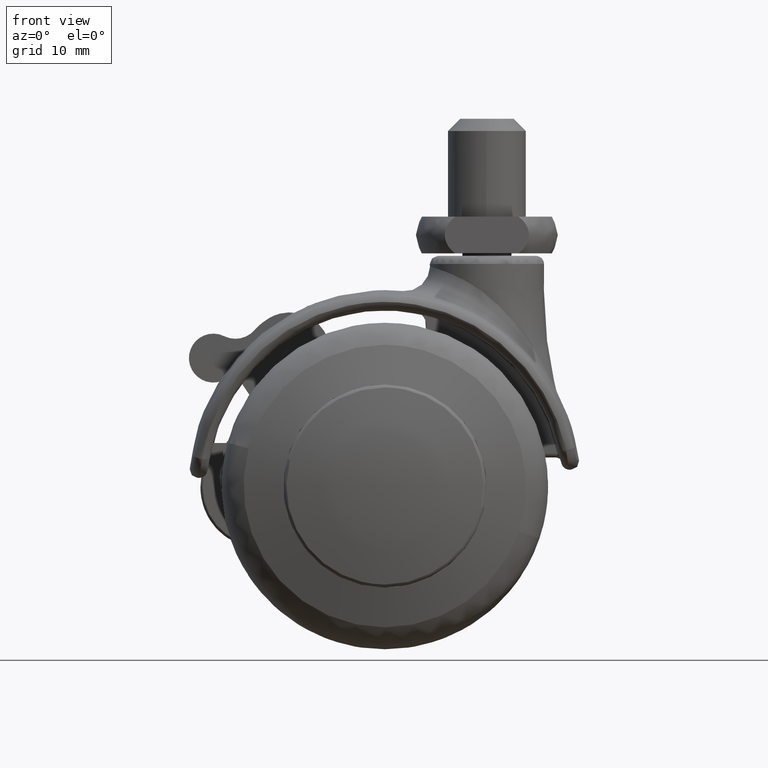
[diagram: clean part render]
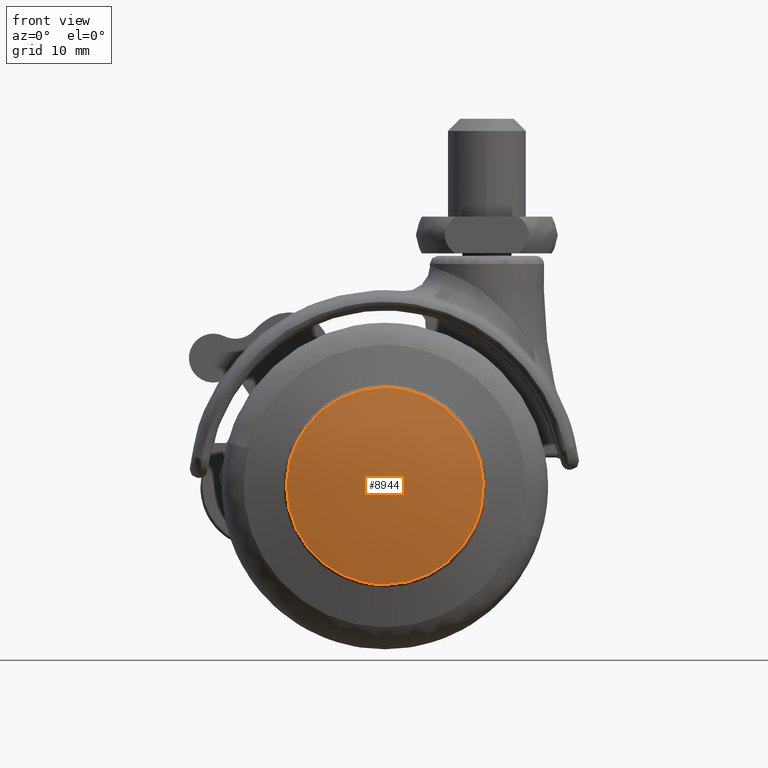
[diagram: same view with one face highlighted and labeled with its STEP entity id]
A machine part, front view. The second image highlights one B-rep face of the part: STEP entity #8944.
In plain terms, the highlighted face is a freeform B-spline surface patch.
Its self-contained STEP definition (entity closure, byte-faithful):
#7233=CARTESIAN_POINT('',(-11.624352625806271,-18.104171105002852,3.227796983644140));
#7234=VERTEX_POINT('',#7233);
#7248=CARTESIAN_POINT('',(0.0,-18.104171123358299,12.064171975249510));
#7249=VERTEX_POINT('',#7248);
#7250=CARTESIAN_POINT('',(0.0,-18.104171123358299,12.064171975249510));
#7251=CARTESIAN_POINT('',(-9.170708417135499,-18.104171123358302,12.064171975249504));
#7252=CARTESIAN_POINT('',(-11.624352625806267,-18.104171105002848,3.227796983644140));
#7260=(BOUNDED_CURVE()B_SPLINE_CURVE(2,(#7250,#7251,#7252),.UNSPECIFIED.,.F.,.U.)B_SPLINE_CURVE_WITH_KNOTS((3,3),(0.0,0.204398610759922),.UNSPECIFIED.)CURVE()GEOMETRIC_REPRESENTATION_ITEM()RATIONAL_B_SPLINE_CURVE((1.0,0.760532131894114,0.912639460288095))REPRESENTATION_ITEM(''));
#7261=EDGE_CURVE('',#7249,#7234,#7260,.T.);
#7263=CARTESIAN_POINT('',(11.789930810766929,-18.104171098746860,-2.557690258343029));
#7264=VERTEX_POINT('',#7263);
#7265=CARTESIAN_POINT('',(11.789930810766936,-18.104171098746868,-2.557690258343029));
#7266=CARTESIAN_POINT('',(12.064171975249497,-18.104171123358299,-1.293547500070638));
#7267=CARTESIAN_POINT('',(12.064171975249501,-18.104171123358299,4.440892E-015));
#7268=CARTESIAN_POINT('',(12.064171975249497,-18.104171123358302,12.064171975249506));
#7269=CARTESIAN_POINT('',(0.0,-18.104171123358299,12.064171975249510));
#7277=(BOUNDED_CURVE()B_SPLINE_CURVE(2,(#7265,#7266,#7267,#7268,#7269),.UNSPECIFIED.,.F.,.U.)B_SPLINE_CURVE_WITH_KNOTS((3,2,3),(0.713703258473060,0.750000000000000,1.0),.UNSPECIFIED.)CURVE()GEOMETRIC_REPRESENTATION_ITEM()RATIONAL_B_SPLINE_CURVE((0.927299386102889,0.957475722166939,1.0,0.707106781186547,1.0))REPRESENTATION_ITEM(''));
#7278=EDGE_CURVE('',#7264,#7249,#7277,.T.);
#7331=CARTESIAN_POINT('',(0.0,-18.104171123358299,-12.064171975249501));
#7332=VERTEX_POINT('',#7331);
#7333=CARTESIAN_POINT('',(0.0,-18.104171123358299,-12.064171975249501));
#7334=CARTESIAN_POINT('',(9.727608532988420,-18.104171123358292,-12.064171975249494));
#7335=CARTESIAN_POINT('',(11.789930810766931,-18.104171098746864,-2.557690258343028));
#7343=(BOUNDED_CURVE()B_SPLINE_CURVE(2,(#7333,#7334,#7335),.UNSPECIFIED.,.F.,.U.)B_SPLINE_CURVE_WITH_KNOTS((3,3),(0.500000000000000,0.713703258473061),.UNSPECIFIED.)CURVE()GEOMETRIC_REPRESENTATION_ITEM()RATIONAL_B_SPLINE_CURVE((1.0,0.749631059019607,0.927299386102891))REPRESENTATION_ITEM(''));
#7344=EDGE_CURVE('',#7332,#7264,#7343,.T.);
#7346=CARTESIAN_POINT('',(-11.624352625806271,-18.104171105002841,3.227796983644140));
#7347=CARTESIAN_POINT('',(-12.064171975249499,-18.104171123358302,1.643863366507249));
#7348=CARTESIAN_POINT('',(-12.064171975249501,-18.104171123358299,4.440892E-015));
#7349=CARTESIAN_POINT('',(-12.064171975249497,-18.104171123358302,-12.064171975249495));
#7350=CARTESIAN_POINT('',(0.0,-18.104171123358299,-12.064171975249501));
#7358=(BOUNDED_CURVE()B_SPLINE_CURVE(2,(#7346,#7347,#7348,#7349,#7350),.UNSPECIFIED.,.F.,.U.)B_SPLINE_CURVE_WITH_KNOTS((3,2,3),(0.204398610759922,0.250000000000000,0.500000000000000),.UNSPECIFIED.)CURVE()GEOMETRIC_REPRESENTATION_ITEM()RATIONAL_B_SPLINE_CURVE((0.912639460288095,0.946574649292434,1.0,0.707106781186547,1.0))REPRESENTATION_ITEM(''));
#7359=EDGE_CURVE('',#7234,#7332,#7358,.T.);
#8914=CARTESIAN_POINT('',(-13.021115174867580,-16.185896537770493,-13.025265505060654));
#8915=CARTESIAN_POINT('',(-6.614248365747537,-17.816020644564563,-13.232713162166045));
#8916=CARTESIAN_POINT('',(6.614398123142863,-17.816020644564563,-13.232713162166034));
#8917=CARTESIAN_POINT('',(13.021400750198785,-16.185823876876135,-13.025256258321562));
#8918=CARTESIAN_POINT('',(-13.228631060725531,-17.817076540375144,-6.616423767106196));
#8919=CARTESIAN_POINT('',(-6.721364829642287,-19.500000000000028,-6.723507187114462));
#8920=CARTESIAN_POINT('',(6.721517012329457,-19.500000000000028,-6.723507187114463));
#8921=CARTESIAN_POINT('',(13.228921037566876,-17.817001545051728,-6.616418995198315));
#8922=CARTESIAN_POINT('',(-13.228631060725531,-17.817076540375144,6.616424370373284));
#8923=CARTESIAN_POINT('',(-6.721364829642287,-19.500000000000028,6.723507800145119));
#8924=CARTESIAN_POINT('',(6.721517012329457,-19.500000000000028,6.723507800145117));
#8925=CARTESIAN_POINT('',(13.228921037566876,-17.817001545051728,6.616419598464966));
#8926=CARTESIAN_POINT('',(-13.021115137619759,-16.185896244983699,13.025266655408361));
#8927=CARTESIAN_POINT('',(-6.614248346525668,-17.816020342377318,13.232714330231948));
#8928=CARTESIAN_POINT('',(6.614398103920556,-17.816020342377318,13.232714330231948));
#8929=CARTESIAN_POINT('',(13.021400712950161,-16.185823584089750,13.025257408668477));
#8937=(BOUNDED_SURFACE()B_SPLINE_SURFACE(2,2,((#8914,#8918,#8922,#8926),(#8915,#8919,#8923,#8927),(#8916,#8920,#8924,#8928),(#8917,#8921,#8925,#8929)),.UNSPECIFIED.,.F.,.F.,.U.)B_SPLINE_SURFACE_WITH_KNOTS((3,1,3),(3,1,3),(12.887954033374790,25.913502099170419,38.939345084667202),(12.883802290248870,25.913502099170419,38.943203096103673),.UNSPECIFIED.)GEOMETRIC_REPRESENTATION_ITEM()RATIONAL_B_SPLINE_SURFACE(((1.032379291539541,1.016184486329403,1.016184486329403,1.032379294492735),(1.016194805210137,1.0,1.0,1.016194808163332),(1.016194805210137,1.0,1.0,1.016194808163332),(1.032380024434292,1.016185219224155,1.016185219224155,1.032380027387487)))REPRESENTATION_ITEM('')SURFACE());
#8938=ORIENTED_EDGE('',*,*,#7261,.T.);
#8939=ORIENTED_EDGE('',*,*,#7359,.T.);
#8940=ORIENTED_EDGE('',*,*,#7344,.T.);
#8941=ORIENTED_EDGE('',*,*,#7278,.T.);
#8942=EDGE_LOOP('',(#8938,#8939,#8940,#8941));
#8943=FACE_OUTER_BOUND('',#8942,.T.);
#8944=ADVANCED_FACE('',(#8943),#8937,.T.);